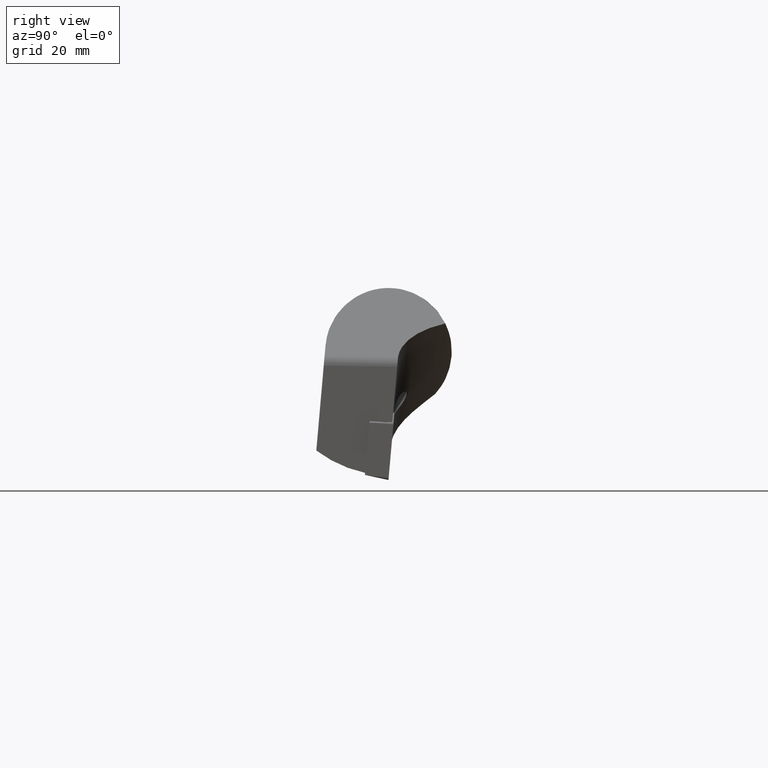
[diagram: clean part render]
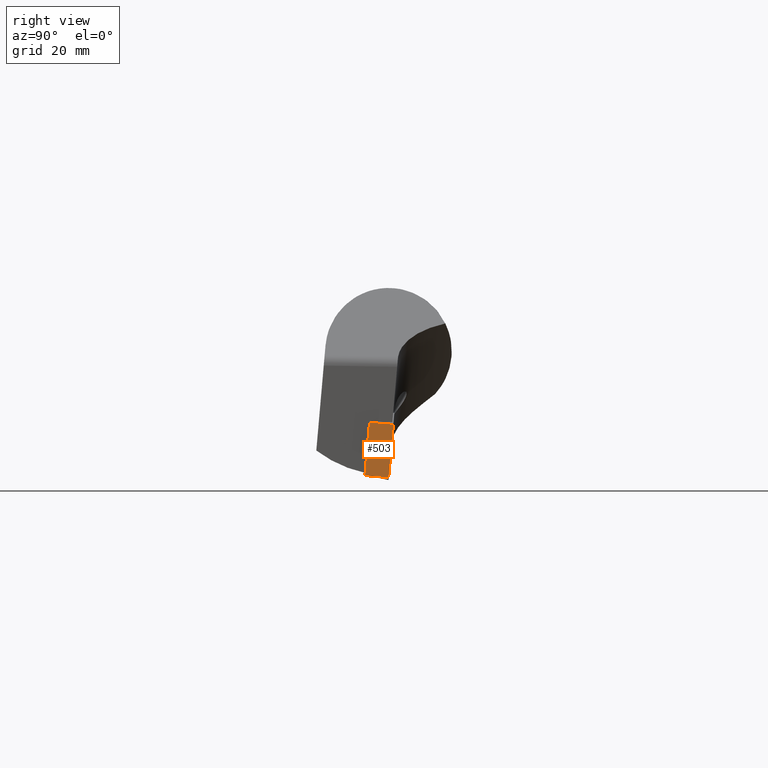
[diagram: same view with one face highlighted and labeled with its STEP entity id]
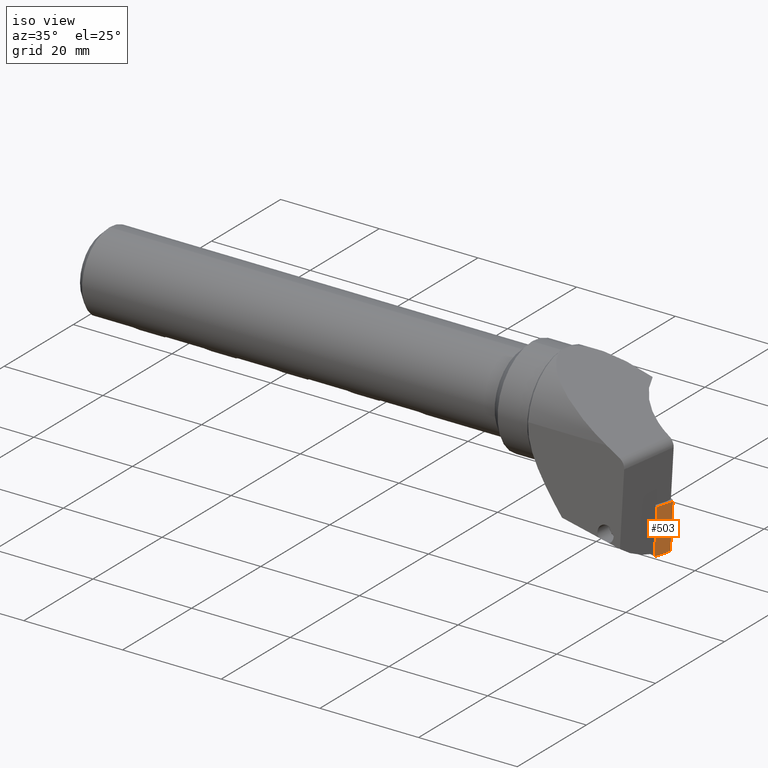
[diagram: same view with one face highlighted and labeled with its STEP entity id]
A machine part, right view. The second image highlights one B-rep face of the part: STEP entity #503.
A second angle (iso view) of the same face is appended — the face is thin or edge-on in the first view.
In plain terms, the highlighted planar face has unit normal (0.9925, -0.1214, 0.0106).
Its self-contained STEP definition (entity closure, byte-faithful):
#41 = VECTOR ( 'NONE', #2997, 999.9999999999998900 ) ;
#53 = CARTESIAN_POINT ( 'NONE',  ( 3.660572141010849800, -1.705267871354720900E-010, -4.762500000000048100 ) ) ;
#133 = VECTOR ( 'NONE', #447, 1000.000000000000000 ) ;
#334 = DIRECTION ( 'NONE',  ( -1.000000000000000000, -1.054711873393892800E-015, -1.165734175856407900E-015 ) ) ;
#447 = DIRECTION ( 'NONE',  ( -1.000000000000000000, -1.054711873393892800E-015, -1.165734175856407900E-015 ) ) ;
#459 = LINE ( 'NONE', #2515, #776 ) ;
#503 = ADVANCED_FACE ( 'NONE', ( #3312 ), #618, .T. ) ;
#508 = LINE ( 'NONE', #53, #41 ) ;
#536 = EDGE_CURVE ( 'NONE', #1804, #785, #3397, .T. ) ;
#561 = CARTESIAN_POINT ( 'NONE',  ( 3.660572141010814700, -3.257738571360371700, -4.362500000000064700 ) ) ;
#618 = PLANE ( 'NONE',  #2995 ) ;
#657 = DIRECTION ( 'NONE',  ( 1.332267629550187300E-015, 0.9925461516413218700, -0.1218693434051483800 ) ) ;
#729 = CARTESIAN_POINT ( 'NONE',  ( 3.660572141010835600, 3.469446951953614200E-015, -4.762500000000048100 ) ) ;
#757 = EDGE_LOOP ( 'NONE', ( #1251, #810, #2663, #3452, #3726, #2283 ) ) ;
#776 = VECTOR ( 'NONE', #3140, 1000.000000000000100 ) ;
#785 = VERTEX_POINT ( 'NONE', #3359 ) ;
#810 = ORIENTED_EDGE ( 'NONE', *, *, #3414, .F. ) ;
#840 = CARTESIAN_POINT ( 'NONE',  ( 3.901050553895633900, -0.9236420824419930800, -4.649091012496935300 ) ) ;
#862 = DIRECTION ( 'NONE',  ( 0.1017299982538295700, 0.9873968681573442900, -0.1212370908936033600 ) ) ;
#1019 = CARTESIAN_POINT ( 'NONE',  ( 3.587188928803192000, -3.970000000170531800, -4.275045293215554500 ) ) ;
#1178 = EDGE_CURVE ( 'NONE', #1852, #2622, #2766, .T. ) ;
#1251 = ORIENTED_EDGE ( 'NONE', *, *, #3095, .F. ) ;
#1783 = DIRECTION ( 'NONE',  ( -1.387778780781443700E-015, -0.1218693434051483900, -0.9925461516413219800 ) ) ;
#1804 = VERTEX_POINT ( 'NONE', #1019 ) ;
#1852 = VERTEX_POINT ( 'NONE', #2786 ) ;
#1940 = CARTESIAN_POINT ( 'NONE',  ( 3.660572141010849800, -1.705267871354720900E-010, -4.762500000000048100 ) ) ;
#1971 = VECTOR ( 'NONE', #862, 1000.000000000000100 ) ;
#1982 = VECTOR ( 'NONE', #3663, 999.9999999999998900 ) ;
#2146 = CARTESIAN_POINT ( 'NONE',  ( -5.199025047692332500, -1.705337260293760000E-010, -4.762500000000055200 ) ) ;
#2283 = ORIENTED_EDGE ( 'NONE', *, *, #1178, .T. ) ;
#2334 = LINE ( 'NONE', #1940, #133 ) ;
#2398 = CARTESIAN_POINT ( 'NONE',  ( 3.660572141010849800, -1.705267871354720900E-010, -4.762500000000048100 ) ) ;
#2515 = CARTESIAN_POINT ( 'NONE',  ( -5.482853753027330700, -1.318076449243286400, -4.600660561964196500 ) ) ;
#2622 = VERTEX_POINT ( 'NONE', #2789 ) ;
#2663 = ORIENTED_EDGE ( 'NONE', *, *, #2870, .F. ) ;
#2766 = LINE ( 'NONE', #2146, #1982 ) ;
#2786 = CARTESIAN_POINT ( 'NONE',  ( -5.199025047692345900, -3.257738571360361500, -4.362500000000067300 ) ) ;
#2789 = CARTESIAN_POINT ( 'NONE',  ( -5.199025047692353000, -3.469446951953614200E-015, -4.762500000000075700 ) ) ;
#2870 = EDGE_CURVE ( 'NONE', #1804, #2871, #3569, .T. ) ;
#2871 = VERTEX_POINT ( 'NONE', #561 ) ;
#2981 = CARTESIAN_POINT ( 'NONE',  ( 3.660572141010842700, -3.970000000170524700, -4.275045293215509200 ) ) ;
#2995 = AXIS2_PLACEMENT_3D ( 'NONE', #2398, #1783, #657 ) ;
#2997 = DIRECTION ( 'NONE',  ( 1.332267629550187500E-015, 0.9925461516413219800, -0.1218693434051483900 ) ) ;
#3020 = VERTEX_POINT ( 'NONE', #729 ) ;
#3095 = EDGE_CURVE ( 'NONE', #3020, #2622, #2334, .T. ) ;
#3140 = DIRECTION ( 'NONE',  ( -0.1437302061857491900, 0.9822404552545257500, -0.1206039629994969000 ) ) ;
#3312 = FACE_OUTER_BOUND ( 'NONE', #757, .T. ) ;
#3359 = CARTESIAN_POINT ( 'NONE',  ( -5.094800586692580100, -3.970000000170534900, -4.275045293215554500 ) ) ;
#3397 = LINE ( 'NONE', #2981, #3501 ) ;
#3414 = EDGE_CURVE ( 'NONE', #2871, #3020, #508, .T. ) ;
#3452 = ORIENTED_EDGE ( 'NONE', *, *, #536, .T. ) ;
#3501 = VECTOR ( 'NONE', #334, 1000.000000000000000 ) ;
#3569 = LINE ( 'NONE', #840, #1971 ) ;
#3640 = EDGE_CURVE ( 'NONE', #785, #1852, #459, .T. ) ;
#3663 = DIRECTION ( 'NONE',  ( 1.332267629550187500E-015, 0.9925461516413219800, -0.1218693434051483900 ) ) ;
#3726 = ORIENTED_EDGE ( 'NONE', *, *, #3640, .T. ) ;